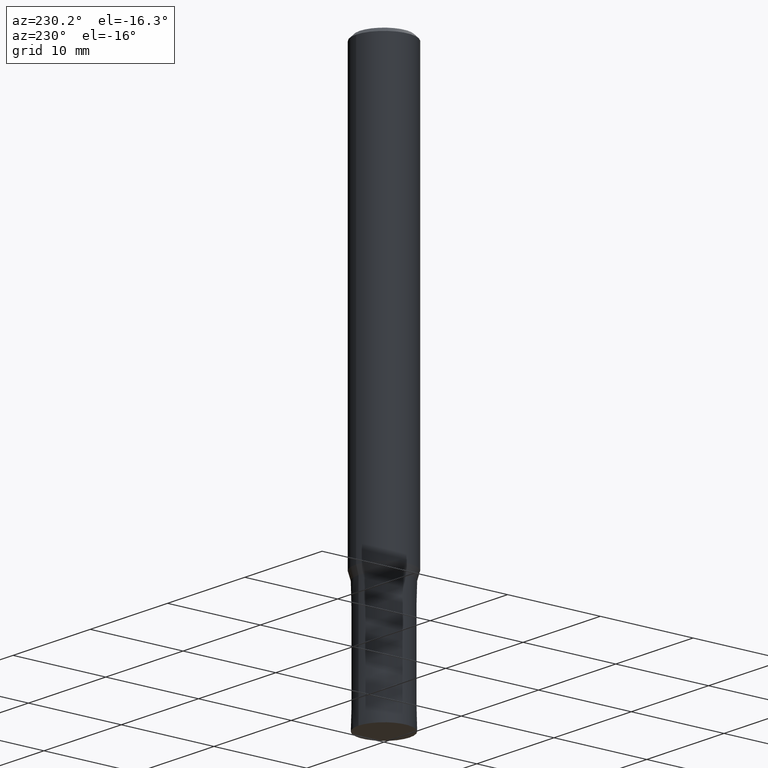
[diagram: clean part render]
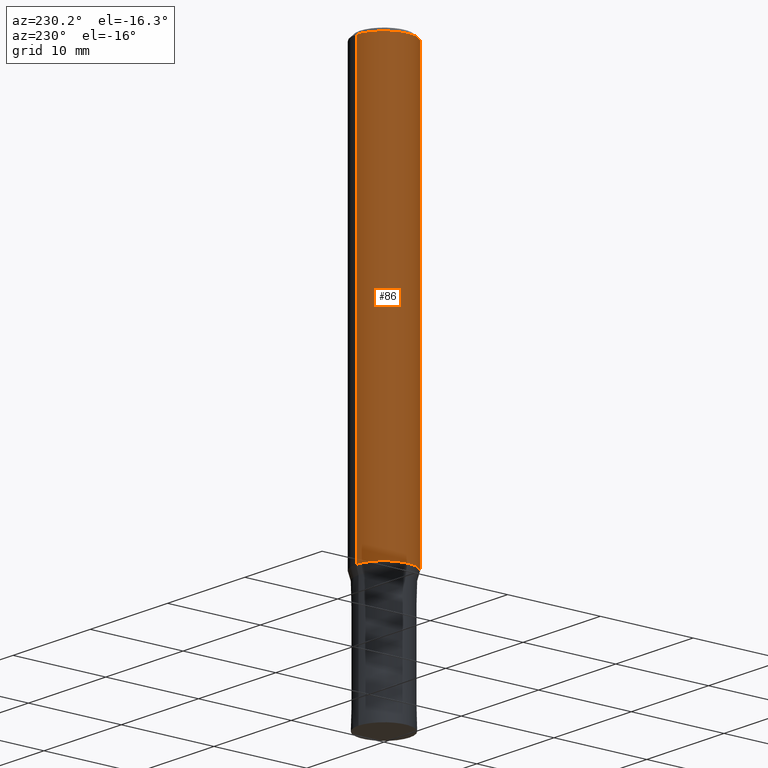
[diagram: same view with one face highlighted and labeled with its STEP entity id]
A machine part, auxiliary view. The second image highlights one B-rep face of the part: STEP entity #86.
In plain terms, the highlighted cylindrical surface (edge-blend (fillet) strip) has radius 3 mm, axis along (-0, -0, 1).
Its self-contained STEP definition (entity closure, byte-faithful):
#84=EDGE_CURVE('',#108,#136,#205,.T.);
#86=ADVANCED_FACE('',(#207),#208,.T.);
#104=EDGE_CURVE('',#154,#152,#228,.T.);
#108=VERTEX_POINT('',#234);
#136=VERTEX_POINT('',#264);
#138=EDGE_CURVE('',#136,#152,#266,.T.);
#152=VERTEX_POINT('',#283);
#154=VERTEX_POINT('',#285);
#180=EDGE_CURVE('',#154,#108,#314,.T.);
#205=CIRCLE('',#333,3.0);
#207=FACE_OUTER_BOUND('',#335,.T.);
#208=CYLINDRICAL_SURFACE('',#336,3.0);
#228=CIRCLE('',#362,3.0);
#234=CARTESIAN_POINT('',(3.67381906146713E-016,-3.0,-0.399999999999999));
#264=CARTESIAN_POINT('',(0.0,3.0,-0.399999999999999));
#266=LINE('',#412,#413);
#283=CARTESIAN_POINT('',(0.0,3.0,-46.128));
#285=CARTESIAN_POINT('',(3.67381906146713E-016,-3.0,-46.128));
#314=LINE('',#466,#467);
#333=AXIS2_PLACEMENT_3D('',#476,#477,#478);
#335=EDGE_LOOP('',(#480,#481,#482,#483));
#336=AXIS2_PLACEMENT_3D('',#484,#485,#486);
#362=AXIS2_PLACEMENT_3D('',#511,#512,#513);
#412=CARTESIAN_POINT('',(-3.67381906146713E-016,3.0,-23.264));
#413=VECTOR('',#554,1.0);
#466=CARTESIAN_POINT('',(3.67381906146713E-016,-3.0,-23.264));
#467=VECTOR('',#616,1.0);
#476=CARTESIAN_POINT('',(0.0,0.0,-0.399999999999999));
#477=DIRECTION('',(0.0,0.0,-1.0));
#478=DIRECTION('',(0.0,1.0,0.0));
#480=ORIENTED_EDGE('',*,*,#138,.T.);
#481=ORIENTED_EDGE('',*,*,#104,.F.);
#482=ORIENTED_EDGE('',*,*,#180,.T.);
#483=ORIENTED_EDGE('',*,*,#84,.T.);
#484=CARTESIAN_POINT('',(0.0,0.0,-23.264));
#485=DIRECTION('',(-0.0,-0.0,1.0));
#486=DIRECTION('',(0.0,1.0,0.0));
#511=CARTESIAN_POINT('',(0.0,0.0,-46.128));
#512=DIRECTION('',(0.0,0.0,-1.0));
#513=DIRECTION('',(0.0,1.0,0.0));
#554=DIRECTION('',(0.0,0.0,-1.0));
#616=DIRECTION('',(-0.0,-0.0,1.0));